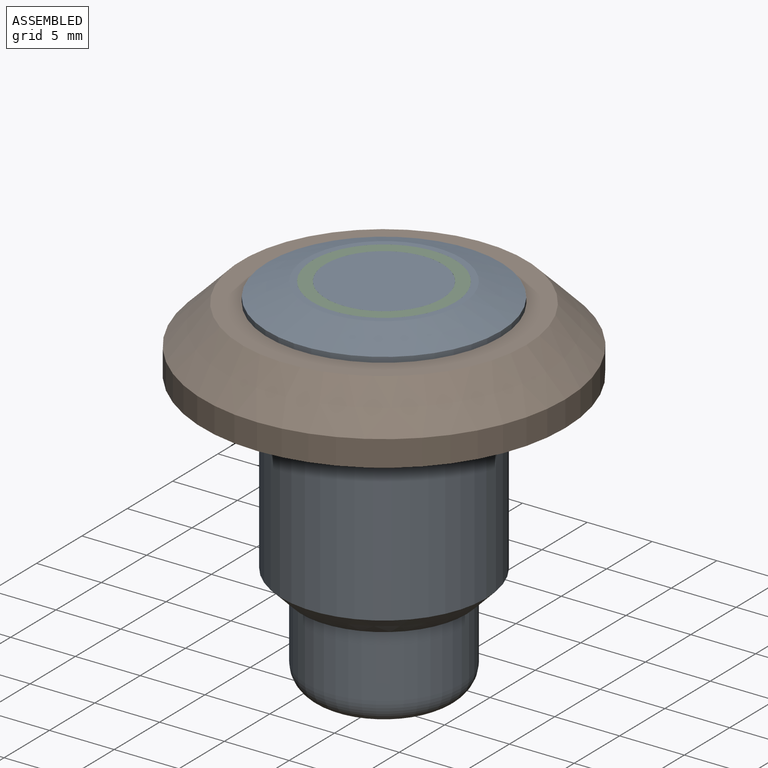
[diagram: assembled view]
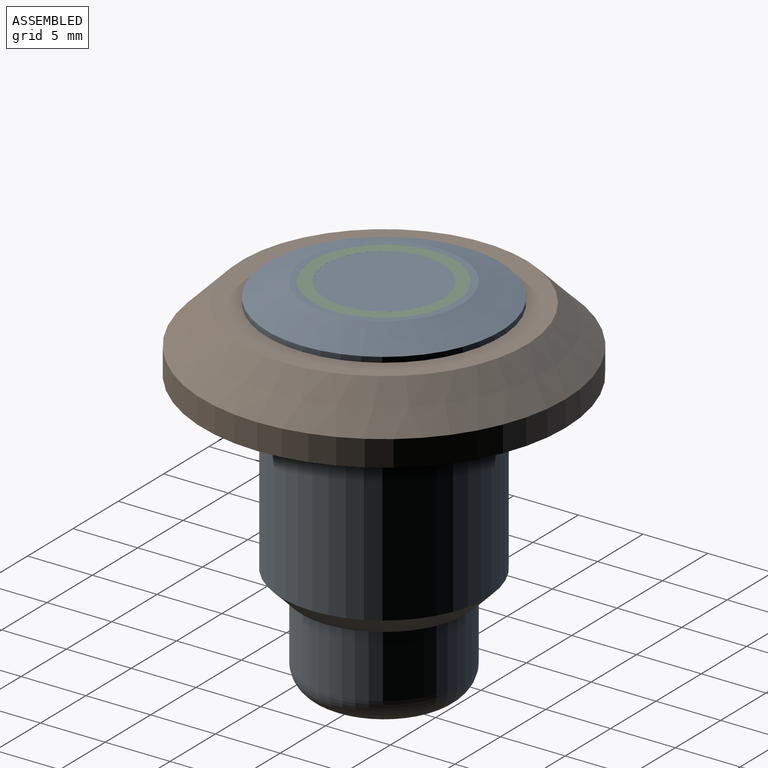
[diagram: assembled view, second angle]
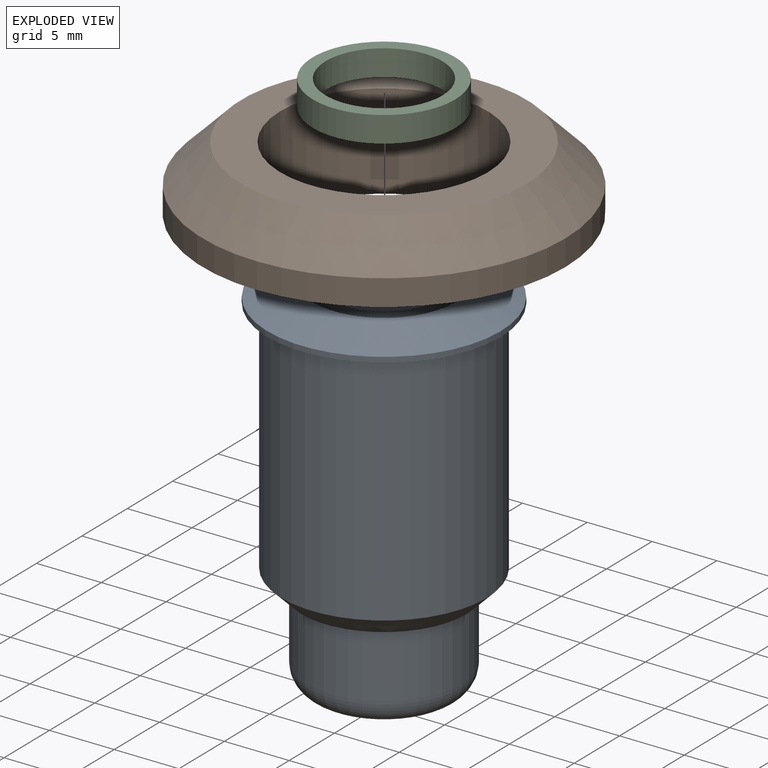
[diagram: exploded view]
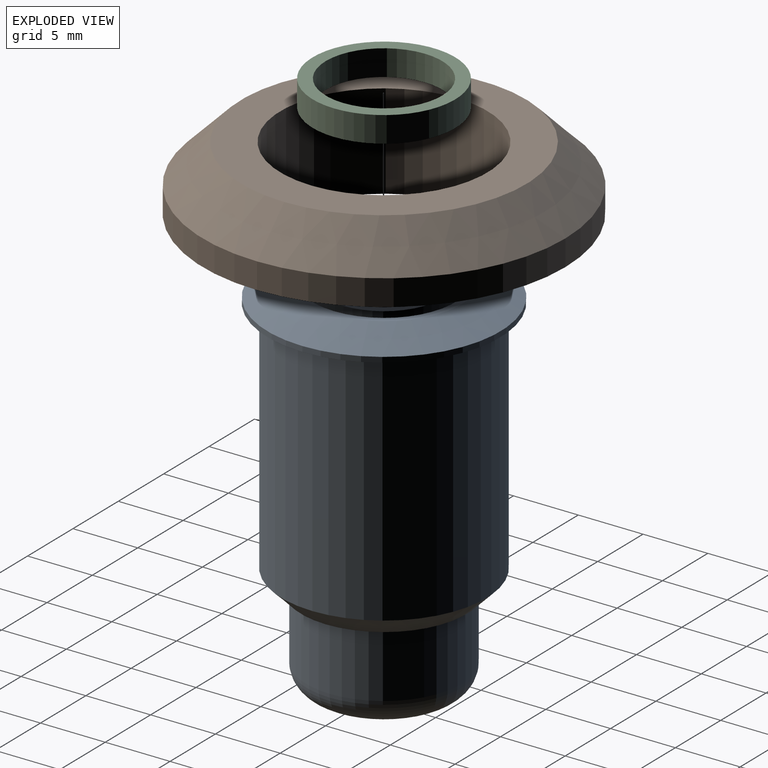
[diagram: exploded view, second angle]
ASSEMBLY  parts=3 mates=2
PART A: 14 faces, bbox 18x18x28.5 mm
  f0: cylinder r=9mm len=18mm, axis (0,0,-1), area 23.1mm2, adj f2,f3
  f1: plane 12x12mm, normal (0,0,1), area 18.1mm2, adj f3,f11
  f2: plane 18x18mm, normal (0,0,-1), area 58.4mm2, adj f0,f4
  f3: cone r=6mm half-angle=70deg, axis (0,0,-1), area 150.4mm2, adj f0,f1
  f4: cylinder r=7.9mm len=18.5mm, axis (0,0,1), area 918.3mm2, adj f2,f6
  f5: plane 12.8x12.8mm, normal (0,0,-1), area 15.6mm2, adj f6,f7
  f6: cone r=6.4mm half-angle=45deg, axis (0,0,1), area 95.3mm2, adj f4,f5
  f7: cylinder r=6mm len=12mm, axis (0,0,1), area 188.5mm2, adj f5,f9
  f8: plane 8x8mm, normal (0,0,-1), area 50.3mm2, adj f9
  f9: torus R=4mm, axis (0,0,-1), area 104.1mm2, adj f7,f8
  f10: cylinder r=4.5mm len=9mm, axis (0,0,1), area 56.5mm2, adj f12,f13
  f11: cylinder r=5.5mm len=11mm, axis (0,0,1), area 69.1mm2, adj f1,f12
  f12: plane 11x11mm, normal (0,0,1), area 31.4mm2, adj f10,f11
  f13: plane 9x9mm, normal (0,0,1), area 63.6mm2, adj f10
PART B: 7 faces, bbox 28x28x7.4 mm
  f0: cylinder r=8mm len=16mm, axis (0,0,-1), area 369.5mm2, adj f2,f6
  f1: cylinder r=14mm len=28mm, axis (0,0,-1), area 175.9mm2, adj f3,f4
  f2: plane 22x22mm, normal (0,0,1), area 179.1mm2, adj f0,f4
  f3: plane 28x28mm, normal (0,0,-1), area 361.3mm2, adj f1,f5
  f4: cone r=11mm half-angle=45deg, axis (0,0,-1), area 333.2mm2, adj f1,f2
  f5: cylinder r=9mm len=18mm, axis (0,0,1), area 132.9mm2, adj f3,f6
  f6: plane 18x18mm, normal (0,0,-1), area 53.4mm2, adj f0,f5
PART C: 4 faces, bbox 11x11x2 mm
  f0: cylinder r=4.5mm len=9mm, axis (0,0,-1), area 56.5mm2, adj f2,f3
  f1: cylinder r=5.5mm len=11mm, axis (0,0,-1), area 69.1mm2, adj f2,f3
  f2: plane 11x11mm, normal (0,0,1), area 31.4mm2, adj f0,f1
  f3: plane 11x11mm, normal (0,0,-1), area 31.4mm2, adj f0,f1
PLACE A t=(9.74,5.83,13.07)mm
PLACE B t=(9.74,5.83,8.07)mm
PLACE C t=(9.74,5.83,12.57)mm
MATE fastened B.f0 <-> A.f4  axis (0,0,1) through (9.74,5.83,13.07)mm
MATE fastened C.f1 <-> A.f0  axis (0,0,-1) through (9.74,5.83,12.57)mm
